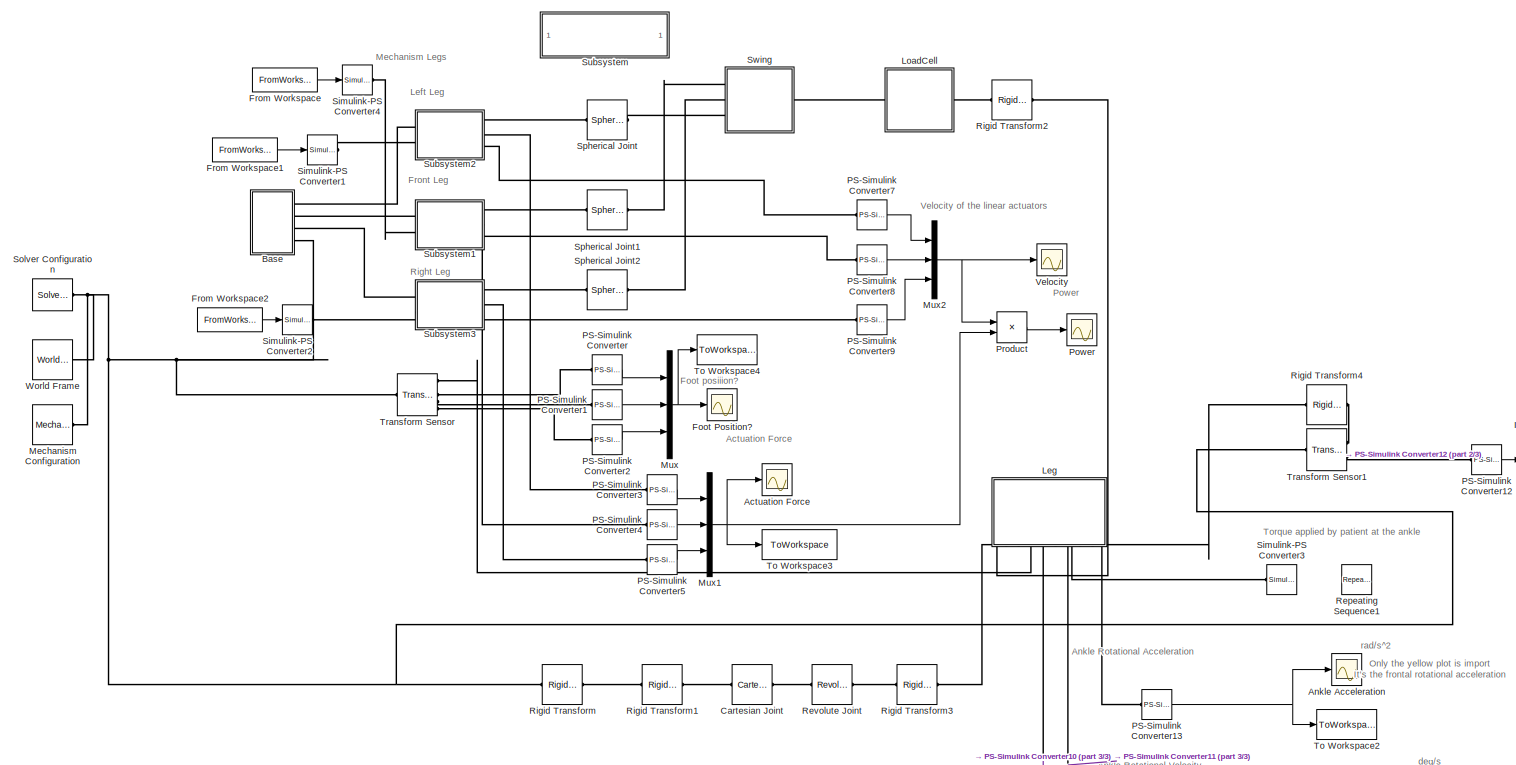
[diagram: root canvas - part 1/3, most of the canvas]
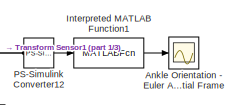
[diagram: root canvas - part 2/3, middle right region]
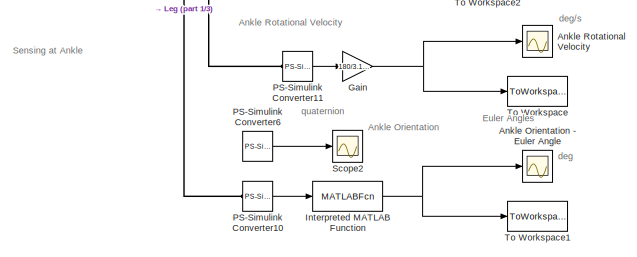
[diagram: root canvas - part 3/3, bottom right region]
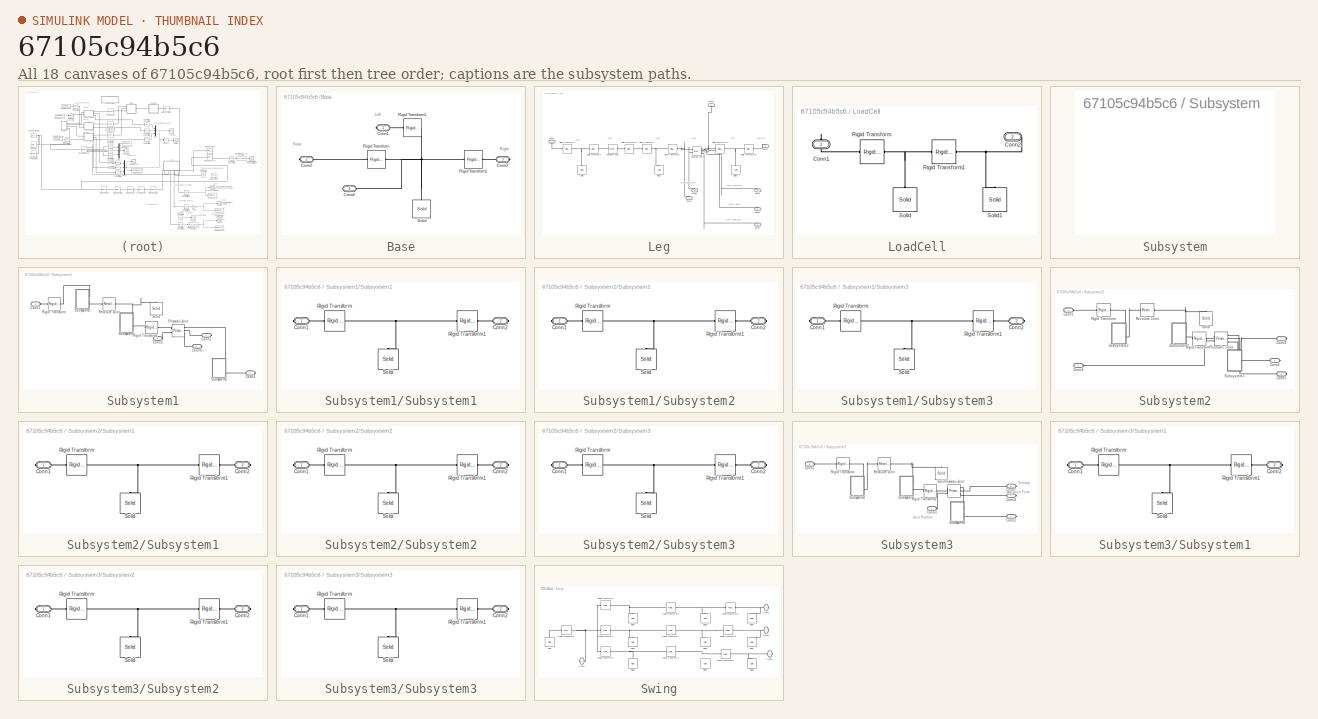
[diagram: thumbnail index - all 18 canvases of the model, root first then tree order]
MODEL slx_67105c94b5c6
KIND model
CONFIG AbsTol = auto
CONFIG EnableMultiTasking = on
CONFIG FixedStep = auto
CONFIG MaxStep = 0.001
CONFIG MinStep = auto
CONFIG RelTol = 1e-3
CONFIG SampleTimeConstraint = Unconstrained
CONFIG Solver = ode15s
CONFIG SolverName = ode15s
CONFIG StartTime = 0.0
CONFIG StopTime = tf
BLOCK [Scope] Actuation Force
  Floating = off
  NumInputPorts = 1
  Ports = [1]
  ScopeSpecificationString = Simulink.scopes.TimeScopeBlockCfg('CurrentConfiguration', extmgr.ConfigurationSet(extmgr.Configuration('Core','General UI',true),extmgr.Configuration('Core','Source UI',true),extmgr.Configuration('Sources','WiredSimulink',true,'DataLoggingSaveFormat','Array','DataLoggingDecimation','1','DataLoggingDecimateData',true,'DataLoggingVariableName','ScopeData1'),extmgr.Configuration('Visuals','Time Domai...<+1800ch>
BLOCK [Scope] Ankle Acceleration
  Floating = off
  NumInputPorts = 1
  Ports = [1]
  ScopeSpecificationString = Simulink.scopes.TimeScopeBlockCfg('CurrentConfiguration', extmgr.ConfigurationSet(extmgr.Configuration('Core','General UI',true),extmgr.Configuration('Core','Source UI',true),extmgr.Configuration('Sources','WiredSimulink',true,'DataLoggingVariableName','ScopeData2'),extmgr.Configuration('Visuals','Time Domain',true,'SerializedDisplays',{struct('MinYLimReal','-44.80784','MaxYLimReal','40.85378','YL...<+1481ch>
BLOCK [Scope] Ankle Orientation - Euler Angle
  Floating = off
  NumInputPorts = 1
  Ports = [1]
  ScopeSpecificationString = Simulink.scopes.TimeScopeBlockCfg('CurrentConfiguration', extmgr.ConfigurationSet(extmgr.Configuration('Core','General UI',true),extmgr.Configuration('Core','Source UI',true),extmgr.Configuration('Sources','WiredSimulink',true,'DataLoggingVariableName','ScopeData1'),extmgr.Configuration('Visuals','Time Domain',true,'SerializedDisplays',{struct('MinYLimReal','-47.02914','MaxYLimReal','27.67297','YL...<+1502ch>
BLOCK [Scope] Ankle Orientation - Euler Angle1 In Spatial Frame
  Floating = off
  NumInputPorts = 1
  Ports = [1]
  ScopeSpecificationString = Simulink.scopes.TimeScopeBlockCfg('CurrentConfiguration', extmgr.ConfigurationSet(extmgr.Configuration('Core','General UI',true),extmgr.Configuration('Core','Source UI',true),extmgr.Configuration('Sources','WiredSimulink',true,'DataLoggingVariableName','ScopeData1'),extmgr.Configuration('Visuals','Time Domain',true,'SerializedDisplays',{struct('MinYLimReal','-21.93748','MaxYLimReal','21.93746','YL...<+1577ch>
BLOCK [Scope] Ankle Rotational Velocity
  Floating = off
  NumInputPorts = 1
  Ports = [1]
  ScopeSpecificationString = Simulink.scopes.TimeScopeBlockCfg('CurrentConfiguration', extmgr.ConfigurationSet(extmgr.Configuration('Core','General UI',true),extmgr.Configuration('Core','Source UI',true),extmgr.Configuration('Sources','WiredSimulink',true,'DataLoggingSaveFormat','Array','DataLoggingDecimation','1','DataLoggingDecimateData',true,'DataLoggingVariableName','ScopeData1'),extmgr.Configuration('Visuals','Time Domai...<+1774ch>
BLOCK [SubSystem] Base
  Ports = [0, 0, 0, 0, 0, 0, 4]
  RequestExecContextInheritance = off
BLOCK [PMIOPort] Base/Conn1
  Side = Right
BLOCK [PMIOPort] Base/Conn2
  Port = 2
  Side = Right
BLOCK [PMIOPort] Base/Conn3
  Port = 3
  Side = Right
BLOCK [PMIOPort] Base/Conn4
  Port = 4
  Side = Right
BLOCK [Reference] Base/Rigid Transform  REF=sm_lib/Frames and
Transforms/Rigid
Transform
  Ports = [0, 0, 0, 0, 0, 1, 1]
  SourceBlock = sm_lib/Frames and\nTransforms/Rigid\nTransform
  SourceProductBaseCode = MS
  SourceProductName = Simscape Multibody
  SourceType = Rigid\nTransform
BLOCK [Reference] Base/Rigid Transform1  REF=sm_lib/Frames and
Transforms/Rigid
Transform
  Ports = [0, 0, 0, 0, 0, 1, 1]
  SourceBlock = sm_lib/Frames and\nTransforms/Rigid\nTransform
  SourceProductBaseCode = MS
  SourceProductName = Simscape Multibody
  SourceType = Rigid\nTransform
BLOCK [Reference] Base/Rigid Transform2  REF=sm_lib/Frames and
Transforms/Rigid
Transform
  Ports = [0, 0, 0, 0, 0, 1, 1]
  SourceBlock = sm_lib/Frames and\nTransforms/Rigid\nTransform
  SourceProductBaseCode = MS
  SourceProductName = Simscape Multibody
  SourceType = Rigid\nTransform
BLOCK [Reference] Base/Solid  REF=sm_lib/Body Elements/Solid
  Ports = [0, 0, 0, 0, 0, 0, 1]
  SourceBlock = sm_lib/Body Elements/Solid
  SourceProductBaseCode = MS
  SourceProductName = Simscape Multibody
  SourceType = Solid
BLOCK [Reference] Cartesian Joint  REF=sm_lib/Joints/Cartesian
Joint
  Ports = [0, 0, 0, 0, 0, 1, 1]
  SourceBlock = sm_lib/Joints/Cartesian\nJoint
  SourceProductBaseCode = MS
  SourceProductName = Simscape Multibody
  SourceType = Cartesian\nJoint
BLOCK [Scope] Foot Position?
  Floating = off
  NumInputPorts = 1
  Ports = [1]
  ScopeSpecificationString = Simulink.scopes.TimeScopeBlockCfg('CurrentConfiguration', extmgr.ConfigurationSet(extmgr.Configuration('Core','General UI',true),extmgr.Configuration('Core','Source UI',true),extmgr.Configuration('Sources','WiredSimulink',true,'DataLoggingSaveFormat','Array','DataLoggingDecimation','1','DataLoggingDecimateData',true),extmgr.Configuration('Visuals','Time Domain',true,'SerializedDisplays',{struct('M...<+1741ch>
BLOCK [FromWorkspace] From Workspace
  SampleTime = 0
  VariableName = Pfront
  ZeroCross = on
BLOCK [FromWorkspace] From Workspace1
  SampleTime = 0
  VariableName = Pleft
  ZeroCross = on
BLOCK [FromWorkspace] From Workspace2
  SampleTime = 0
  VariableName = Pright
  ZeroCross = on
BLOCK [Gain] Gain
  Gain = 180/3.1415
  OutDataTypeStr = Inherit: Inherit via internal rule
  ParamDataTypeStr = Inherit: Inherit via internal rule
  SaturateOnIntegerOverflow = off
BLOCK [MATLABFcn] Interpreted MATLAB Function
  MATLABFcn = quat2angle(u)
  Output1D = off
  Ports = [1, 1]
BLOCK [MATLABFcn] Interpreted MATLAB Function1
  MATLABFcn = quat2angle(u)
  Output1D = off
  Ports = [1, 1]
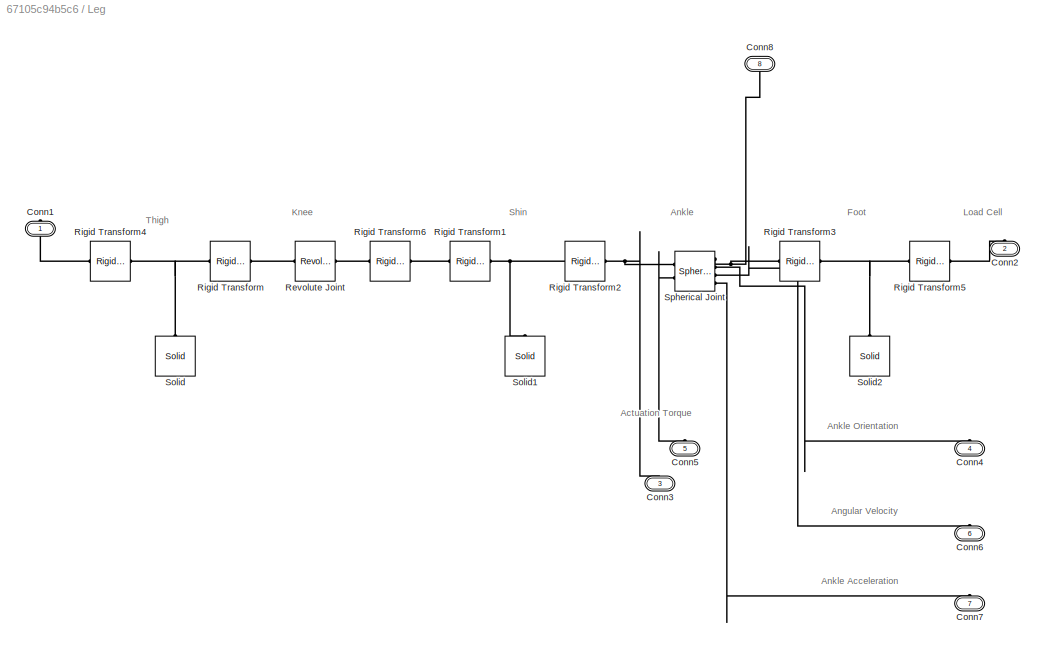
BLOCK [SubSystem] Leg
  Ports = [0, 0, 0, 0, 0, 0, 8]
  RequestExecContextInheritance = off
BLOCK [PMIOPort] Leg/Conn1
  Side = Right
BLOCK [PMIOPort] Leg/Conn2
  Port = 2
  Side = Right
BLOCK [PMIOPort] Leg/Conn3
  Port = 3
  Side = Right
BLOCK [PMIOPort] Leg/Conn4
  Port = 4
  Side = Right
BLOCK [PMIOPort] Leg/Conn5
  Port = 5
  Side = Right
BLOCK [PMIOPort] Leg/Conn6
  Port = 6
  Side = Right
BLOCK [PMIOPort] Leg/Conn7
  Port = 7
  Side = Right
BLOCK [PMIOPort] Leg/Conn8
  Port = 8
  Side = Right
BLOCK [Reference] Leg/Revolute Joint  REF=sm_lib/Joints/Revolute Joint
  Ports = [0, 0, 0, 0, 0, 1, 1]
  SourceBlock = sm_lib/Joints/Revolute Joint
  SourceProductBaseCode = MS
  SourceProductName = Simscape Multibody
  SourceType = Revolute Joint
BLOCK [Reference] Leg/Rigid Transform  REF=sm_lib/Frames and
Transforms/Rigid
Transform
  Ports = [0, 0, 0, 0, 0, 1, 1]
  SourceBlock = sm_lib/Frames and\nTransforms/Rigid\nTransform
  SourceProductBaseCode = MS
  SourceProductName = Simscape Multibody
  SourceType = Rigid\nTransform
BLOCK [Reference] Leg/Rigid Transform1  REF=sm_lib/Frames and
Transforms/Rigid
Transform
  Ports = [0, 0, 0, 0, 0, 1, 1]
  SourceBlock = sm_lib/Frames and\nTransforms/Rigid\nTransform
  SourceProductBaseCode = MS
  SourceProductName = Simscape Multibody
  SourceType = Rigid\nTransform
BLOCK [Reference] Leg/Rigid Transform2  REF=sm_lib/Frames and
Transforms/Rigid
Transform
  Ports = [0, 0, 0, 0, 0, 1, 1]
  SourceBlock = sm_lib/Frames and\nTransforms/Rigid\nTransform
  SourceProductBaseCode = MS
  SourceProductName = Simscape Multibody
  SourceType = Rigid\nTransform
BLOCK [Reference] Leg/Rigid Transform3  REF=sm_lib/Frames and
Transforms/Rigid
Transform
  Ports = [0, 0, 0, 0, 0, 1, 1]
  SourceBlock = sm_lib/Frames and\nTransforms/Rigid\nTransform
  SourceProductBaseCode = MS
  SourceProductName = Simscape Multibody
  SourceType = Rigid\nTransform
BLOCK [Reference] Leg/Rigid Transform4  REF=sm_lib/Frames and
Transforms/Rigid
Transform
  Ports = [0, 0, 0, 0, 0, 1, 1]
  SourceBlock = sm_lib/Frames and\nTransforms/Rigid\nTransform
  SourceProductBaseCode = MS
  SourceProductName = Simscape Multibody
  SourceType = Rigid\nTransform
BLOCK [Reference] Leg/Rigid Transform5  REF=sm_lib/Frames and
Transforms/Rigid
Transform
  Ports = [0, 0, 0, 0, 0, 1, 1]
  SourceBlock = sm_lib/Frames and\nTransforms/Rigid\nTransform
  SourceProductBaseCode = MS
  SourceProductName = Simscape Multibody
  SourceType = Rigid\nTransform
BLOCK [Reference] Leg/Rigid Transform6  REF=sm_lib/Frames and
Transforms/Rigid
Transform
  Ports = [0, 0, 0, 0, 0, 1, 1]
  SourceBlock = sm_lib/Frames and\nTransforms/Rigid\nTransform
  SourceProductBaseCode = MS
  SourceProductName = Simscape Multibody
  SourceType = Rigid\nTransform
BLOCK [Reference] Leg/Solid  REF=sm_lib/Body Elements/Solid
  Ports = [0, 0, 0, 0, 0, 0, 1]
  SourceBlock = sm_lib/Body Elements/Solid
  SourceProductBaseCode = MS
  SourceProductName = Simscape Multibody
  SourceType = Solid
BLOCK [Reference] Leg/Solid1  REF=sm_lib/Body Elements/Solid
  Ports = [0, 0, 0, 0, 0, 0, 1]
  SourceBlock = sm_lib/Body Elements/Solid
  SourceProductBaseCode = MS
  SourceProductName = Simscape Multibody
  SourceType = Solid
BLOCK [Reference] Leg/Solid2  REF=sm_lib/Body Elements/Solid
  Ports = [0, 0, 0, 0, 0, 0, 1]
  SourceBlock = sm_lib/Body Elements/Solid
  SourceProductBaseCode = MS
  SourceProductName = Simscape Multibody
  SourceType = Solid
BLOCK [Reference] Leg/Spherical Joint  REF=sm_lib/Joints/Spherical
Joint
  Ports = [0, 0, 0, 0, 0, 2, 4]
  SourceBlock = sm_lib/Joints/Spherical\nJoint
  SourceProductBaseCode = MS
  SourceProductName = Simscape Multibody
  SourceType = Spherical\nJoint
BLOCK [SubSystem] LoadCell
  Ports = [0, 0, 0, 0, 0, 1, 1]
  RequestExecContextInheritance = off
BLOCK [PMIOPort] LoadCell/Conn1
  Side = Right
BLOCK [PMIOPort] LoadCell/Conn2
  Port = 2
  Side = Left
BLOCK [Reference] LoadCell/Rigid Transform  REF=sm_lib/Frames and
Transforms/Rigid
Transform
  Ports = [0, 0, 0, 0, 0, 1, 1]
  SourceBlock = sm_lib/Frames and\nTransforms/Rigid\nTransform
  SourceProductBaseCode = MS
  SourceProductName = Simscape Multibody
  SourceType = Rigid\nTransform
BLOCK [Reference] LoadCell/Rigid Transform1  REF=sm_lib/Frames and
Transforms/Rigid
Transform
  Ports = [0, 0, 0, 0, 0, 1, 1]
  SourceBlock = sm_lib/Frames and\nTransforms/Rigid\nTransform
  SourceProductBaseCode = MS
  SourceProductName = Simscape Multibody
  SourceType = Rigid\nTransform
BLOCK [Reference] LoadCell/Solid  REF=sm_lib/Body Elements/Solid
  Ports = [0, 0, 0, 0, 0, 0, 1]
  SourceBlock = sm_lib/Body Elements/Solid
  SourceProductBaseCode = MS
  SourceProductName = Simscape Multibody
  SourceType = Solid
BLOCK [Reference] LoadCell/Solid1  REF=sm_lib/Body Elements/Solid
  Ports = [0, 0, 0, 0, 0, 0, 1]
  SourceBlock = sm_lib/Body Elements/Solid
  SourceProductBaseCode = MS
  SourceProductName = Simscape Multibody
  SourceType = Solid
BLOCK [Reference] Mechanism Configuration  REF=sm_lib/Utilities/Mechanism
Configuration
  Ports = [0, 0, 0, 0, 0, 0, 1]
  SourceBlock = sm_lib/Utilities/Mechanism\nConfiguration
  SourceProductBaseCode = MS
  SourceProductName = Simscape Multibody
  SourceType = Mechanism\nConfiguration
BLOCK [Mux] Mux
  DisplayOption = bar
  Inputs = 3
  Ports = [3, 1]
BLOCK [Mux] Mux1
  DisplayOption = bar
  Inputs = 3
  Ports = [3, 1]
BLOCK [Mux] Mux2
  DisplayOption = bar
  Inputs = 3
  Ports = [3, 1]
BLOCK [Reference] PS-Simulink Converter  REF=nesl_utility/PS-Simulink
Converter
  Ports = [0, 1, 0, 0, 0, 1]
  SourceBlock = nesl_utility/PS-Simulink\nConverter
  SourceProductBaseCode = SS
  SourceProductName = Simscape
  SourceType = PS-Simulink\nConverter
BLOCK [Reference] PS-Simulink Converter1  REF=nesl_utility/PS-Simulink
Converter
  Ports = [0, 1, 0, 0, 0, 1]
  SourceBlock = nesl_utility/PS-Simulink\nConverter
  SourceProductBaseCode = SS
  SourceProductName = Simscape
  SourceType = PS-Simulink\nConverter
BLOCK [Reference] PS-Simulink Converter10  REF=nesl_utility/PS-Simulink
Converter
  Ports = [0, 1, 0, 0, 0, 1]
  SourceBlock = nesl_utility/PS-Simulink\nConverter
  SourceProductBaseCode = SS
  SourceProductName = Simscape
  SourceType = PS-Simulink\nConverter
BLOCK [Reference] PS-Simulink Converter11  REF=nesl_utility/PS-Simulink
Converter
  Ports = [0, 1, 0, 0, 0, 1]
  SourceBlock = nesl_utility/PS-Simulink\nConverter
  SourceProductBaseCode = SS
  SourceProductName = Simscape
  SourceType = PS-Simulink\nConverter
BLOCK [Reference] PS-Simulink Converter12  REF=nesl_utility/PS-Simulink
Converter
  Ports = [0, 1, 0, 0, 0, 1]
  SourceBlock = nesl_utility/PS-Simulink\nConverter
  SourceProductBaseCode = SS
  SourceProductName = Simscape
  SourceType = PS-Simulink\nConverter
BLOCK [Reference] PS-Simulink Converter13  REF=nesl_utility/PS-Simulink
Converter
  Ports = [0, 1, 0, 0, 0, 1]
  SourceBlock = nesl_utility/PS-Simulink\nConverter
  SourceProductBaseCode = SS
  SourceProductName = Simscape
  SourceType = PS-Simulink\nConverter
BLOCK [Reference] PS-Simulink Converter2  REF=nesl_utility/PS-Simulink
Converter
  Ports = [0, 1, 0, 0, 0, 1]
  SourceBlock = nesl_utility/PS-Simulink\nConverter
  SourceProductBaseCode = SS
  SourceProductName = Simscape
  SourceType = PS-Simulink\nConverter
BLOCK [Reference] PS-Simulink Converter3  REF=nesl_utility/PS-Simulink
Converter
  Ports = [0, 1, 0, 0, 0, 1]
  SourceBlock = nesl_utility/PS-Simulink\nConverter
  SourceProductBaseCode = SS
  SourceProductName = Simscape
  SourceType = PS-Simulink\nConverter
BLOCK [Reference] PS-Simulink Converter4  REF=nesl_utility/PS-Simulink
Converter
  Ports = [0, 1, 0, 0, 0, 1]
  SourceBlock = nesl_utility/PS-Simulink\nConverter
  SourceProductBaseCode = SS
  SourceProductName = Simscape
  SourceType = PS-Simulink\nConverter
BLOCK [Reference] PS-Simulink Converter5  REF=nesl_utility/PS-Simulink
Converter
  Ports = [0, 1, 0, 0, 0, 1]
  SourceBlock = nesl_utility/PS-Simulink\nConverter
  SourceProductBaseCode = SS
  SourceProductName = Simscape
  SourceType = PS-Simulink\nConverter
BLOCK [Reference] PS-Simulink Converter6  REF=nesl_utility/PS-Simulink
Converter
  Commented = on
  Ports = [0, 1, 0, 0, 0, 1]
  SourceBlock = nesl_utility/PS-Simulink\nConverter
  SourceProductBaseCode = SS
  SourceProductName = Simscape
  SourceType = PS-Simulink\nConverter
BLOCK [Reference] PS-Simulink Converter7  REF=nesl_utility/PS-Simulink
Converter
  Ports = [0, 1, 0, 0, 0, 1]
  SourceBlock = nesl_utility/PS-Simulink\nConverter
  SourceProductBaseCode = SS
  SourceProductName = Simscape
  SourceType = PS-Simulink\nConverter
BLOCK [Reference] PS-Simulink Converter8  REF=nesl_utility/PS-Simulink
Converter
  Ports = [0, 1, 0, 0, 0, 1]
  SourceBlock = nesl_utility/PS-Simulink\nConverter
  SourceProductBaseCode = SS
  SourceProductName = Simscape
  SourceType = PS-Simulink\nConverter
BLOCK [Reference] PS-Simulink Converter9  REF=nesl_utility/PS-Simulink
Converter
  Ports = [0, 1, 0, 0, 0, 1]
  SourceBlock = nesl_utility/PS-Simulink\nConverter
  SourceProductBaseCode = SS
  SourceProductName = Simscape
  SourceType = PS-Simulink\nConverter
BLOCK [Scope] Power
  Floating = off
  NumInputPorts = 1
  Ports = [1]
  ScopeSpecificationString = Simulink.scopes.TimeScopeBlockCfg('CurrentConfiguration', extmgr.ConfigurationSet(extmgr.Configuration('Core','General UI',true),extmgr.Configuration('Core','Source UI',true),extmgr.Configuration('Sources','WiredSimulink',true,'DataLoggingSaveFormat','Array','DataLoggingDecimation','1','DataLoggingDecimateData',true,'DataLoggingVariableName','ScopeData3'),extmgr.Configuration('Visuals','Time Domai...<+1694ch>
BLOCK [Product] Product
  InputSameDT = off
  OutDataTypeStr = Inherit: Inherit via internal rule
  Ports = [2, 1]
  RndMeth = Floor
  SaturateOnIntegerOverflow = off
BLOCK [Reference] Repeating Sequence1  REF=simulink/Sources/Repeating
Sequence
  Commented = on
  Ports = [0, 1]
  SourceBlock = simulink/Sources/Repeating\nSequence
  SourceProductBaseCode = SL
  SourceProductName = Simulink
  SourceType = Repeating table
BLOCK [Reference] Revolute Joint  REF=sm_lib/Joints/Revolute Joint
  Ports = [0, 0, 0, 0, 0, 1, 1]
  SourceBlock = sm_lib/Joints/Revolute Joint
  SourceProductBaseCode = MS
  SourceProductName = Simscape Multibody
  SourceType = Revolute Joint
BLOCK [Reference] Rigid Transform  REF=sm_lib/Frames and
Transforms/Rigid
Transform
  Ports = [0, 0, 0, 0, 0, 1, 1]
  SourceBlock = sm_lib/Frames and\nTransforms/Rigid\nTransform
  SourceProductBaseCode = MS
  SourceProductName = Simscape Multibody
  SourceType = Rigid\nTransform
BLOCK [Reference] Rigid Transform1  REF=sm_lib/Frames and
Transforms/Rigid
Transform
  Ports = [0, 0, 0, 0, 0, 1, 1]
  SourceBlock = sm_lib/Frames and\nTransforms/Rigid\nTransform
  SourceProductBaseCode = MS
  SourceProductName = Simscape Multibody
  SourceType = Rigid\nTransform
BLOCK [Reference] Rigid Transform2  REF=sm_lib/Frames and
Transforms/Rigid
Transform
  Ports = [0, 0, 0, 0, 0, 1, 1]
  SourceBlock = sm_lib/Frames and\nTransforms/Rigid\nTransform
  SourceProductBaseCode = MS
  SourceProductName = Simscape Multibody
  SourceType = Rigid\nTransform
BLOCK [Reference] Rigid Transform3  REF=sm_lib/Frames and
Transforms/Rigid
Transform
  Ports = [0, 0, 0, 0, 0, 1, 1]
  SourceBlock = sm_lib/Frames and\nTransforms/Rigid\nTransform
  SourceProductBaseCode = MS
  SourceProductName = Simscape Multibody
  SourceType = Rigid\nTransform
BLOCK [Reference] Rigid Transform4  REF=sm_lib/Frames and
Transforms/Rigid
Transform
  Ports = [0, 0, 0, 0, 0, 1, 1]
  SourceBlock = sm_lib/Frames and\nTransforms/Rigid\nTransform
  SourceProductBaseCode = MS
  SourceProductName = Simscape Multibody
  SourceType = Rigid\nTransform
BLOCK [Scope] Scope2
  Commented = on
  Floating = off
  NumInputPorts = 1
  Ports = [1]
  ScopeSpecificationString = Simulink.scopes.TimeScopeBlockCfg('CurrentConfiguration', extmgr.ConfigurationSet(extmgr.Configuration('Core','General UI',true),extmgr.Configuration('Core','Source UI',true),extmgr.Configuration('Sources','WiredSimulink',true,'DataLoggingSaveFormat','Array','DataLoggingDecimation','1','DataLoggingDecimateData',true,'DataLoggingVariableName','ScopeData1'),extmgr.Configuration('Visuals','Time Domai...<+1758ch>
BLOCK [Reference] Simulink-PS Converter1  REF=nesl_utility/Simulink-PS
Converter
  Ports = [1, 0, 0, 0, 0, 0, 1]
  SourceBlock = nesl_utility/Simulink-PS\nConverter
  SourceProductBaseCode = SS
  SourceProductName = Simscape
  SourceType = Simulink-PS\nConverter
BLOCK [Reference] Simulink-PS Converter2  REF=nesl_utility/Simulink-PS
Converter
  Ports = [1, 0, 0, 0, 0, 0, 1]
  SourceBlock = nesl_utility/Simulink-PS\nConverter
  SourceProductBaseCode = SS
  SourceProductName = Simscape
  SourceType = Simulink-PS\nConverter
BLOCK [Reference] Simulink-PS Converter3  REF=nesl_utility/Simulink-PS
Converter
  Commented = on
  Ports = [1, 0, 0, 0, 0, 0, 1]
  SourceBlock = nesl_utility/Simulink-PS\nConverter
  SourceProductBaseCode = SS
  SourceProductName = Simscape
  SourceType = Simulink-PS\nConverter
BLOCK [Reference] Simulink-PS Converter4  REF=nesl_utility/Simulink-PS
Converter
  Ports = [1, 0, 0, 0, 0, 0, 1]
  SourceBlock = nesl_utility/Simulink-PS\nConverter
  SourceProductBaseCode = SS
  SourceProductName = Simscape
  SourceType = Simulink-PS\nConverter
BLOCK [Reference] Solver Configuration  REF=nesl_utility/Solver
Configuration
  Ports = [0, 0, 0, 0, 0, 0, 1]
  SourceBlock = nesl_utility/Solver\nConfiguration
  SourceProductBaseCode = SS
  SourceProductName = Simscape
  SourceType = Solver\nConfiguration
BLOCK [Reference] Spherical Joint  REF=sm_lib/Joints/Spherical
Joint
  Ports = [0, 0, 0, 0, 0, 1, 1]
  SourceBlock = sm_lib/Joints/Spherical\nJoint
  SourceProductBaseCode = MS
  SourceProductName = Simscape Multibody
  SourceType = Spherical\nJoint
BLOCK [Reference] Spherical Joint1  REF=sm_lib/Joints/Spherical
Joint
  Ports = [0, 0, 0, 0, 0, 1, 1]
  SourceBlock = sm_lib/Joints/Spherical\nJoint
  SourceProductBaseCode = MS
  SourceProductName = Simscape Multibody
  SourceType = Spherical\nJoint
BLOCK [Reference] Spherical Joint2  REF=sm_lib/Joints/Spherical
Joint
  Ports = [0, 0, 0, 0, 0, 1, 1]
  SourceBlock = sm_lib/Joints/Spherical\nJoint
  SourceProductBaseCode = MS
  SourceProductName = Simscape Multibody
  SourceType = Spherical\nJoint
BLOCK [SubSystem] Subsystem
  OpenFcn = open_system('sm_lib')
  Ports = []
  RequestExecContextInheritance = off
  ShowPortLabels = none
BLOCK [SubSystem] Subsystem1
  Ports = [0, 0, 0, 0, 0, 2, 3]
  RequestExecContextInheritance = off
BLOCK [PMIOPort] Subsystem1/Conn1
  Side = Left
BLOCK [PMIOPort] Subsystem1/Conn2
  Port = 2
  Side = Right
BLOCK [PMIOPort] Subsystem1/Conn3
  Port = 3
  Side = Left
BLOCK [PMIOPort] Subsystem1/Conn4
  Port = 4
  Side = Right
BLOCK [PMIOPort] Subsystem1/Conn5
  Port = 5
  Side = Right
BLOCK [Reference] Subsystem1/Prismatic Joint  REF=sm_lib/Joints/Prismatic
Joint
  Ports = [0, 0, 0, 0, 0, 2, 3]
  SourceBlock = sm_lib/Joints/Prismatic\nJoint
  SourceProductBaseCode = MS
  SourceProductName = Simscape Multibody
  SourceType = Prismatic\nJoint
BLOCK [Reference] Subsystem1/Revolute Joint  REF=sm_lib/Joints/Revolute Joint
  Ports = [0, 0, 0, 0, 0, 1, 1]
  SourceBlock = sm_lib/Joints/Revolute Joint
  SourceProductBaseCode = MS
  SourceProductName = Simscape Multibody
  SourceType = Revolute Joint
BLOCK [Reference] Subsystem1/Rigid Transform  REF=sm_lib/Frames and
Transforms/Rigid
Transform
  Ports = [0, 0, 0, 0, 0, 1, 1]
  SourceBlock = sm_lib/Frames and\nTransforms/Rigid\nTransform
  SourceProductBaseCode = MS
  SourceProductName = Simscape Multibody
  SourceType = Rigid\nTransform
BLOCK [Reference] Subsystem1/Rigid Transform1  REF=sm_lib/Frames and
Transforms/Rigid
Transform
  Ports = [0, 0, 0, 0, 0, 1, 1]
  SourceBlock = sm_lib/Frames and\nTransforms/Rigid\nTransform
  SourceProductBaseCode = MS
  SourceProductName = Simscape Multibody
  SourceType = Rigid\nTransform
BLOCK [Reference] Subsystem1/Solid  REF=sm_lib/Body Elements/Solid
  Ports = [0, 0, 0, 0, 0, 0, 1]
  SourceBlock = sm_lib/Body Elements/Solid
  SourceProductBaseCode = MS
  SourceProductName = Simscape Multibody
  SourceType = Solid
BLOCK [SubSystem] Subsystem1/Subsystem1
  Ports = [0, 0, 0, 0, 0, 0, 2]
  RequestExecContextInheritance = off
BLOCK [PMIOPort] Subsystem1/Subsystem1/Conn1
  Side = Right
BLOCK [PMIOPort] Subsystem1/Subsystem1/Conn2
  Port = 2
  Side = Right
BLOCK [Reference] Subsystem1/Subsystem1/Rigid Transform  REF=sm_lib/Frames and
Transforms/Rigid
Transform
  Ports = [0, 0, 0, 0, 0, 1, 1]
  SourceBlock = sm_lib/Frames and\nTransforms/Rigid\nTransform
  SourceProductBaseCode = MS
  SourceProductName = Simscape Multibody
  SourceType = Rigid\nTransform
BLOCK [Reference] Subsystem1/Subsystem1/Rigid Transform1  REF=sm_lib/Frames and
Transforms/Rigid
Transform
  Ports = [0, 0, 0, 0, 0, 1, 1]
  SourceBlock = sm_lib/Frames and\nTransforms/Rigid\nTransform
  SourceProductBaseCode = MS
  SourceProductName = Simscape Multibody
  SourceType = Rigid\nTransform
BLOCK [Reference] Subsystem1/Subsystem1/Solid  REF=sm_lib/Body Elements/Solid
  Ports = [0, 0, 0, 0, 0, 0, 1]
  SourceBlock = sm_lib/Body Elements/Solid
  SourceProductBaseCode = MS
  SourceProductName = Simscape Multibody
  SourceType = Solid
BLOCK [SubSystem] Subsystem1/Subsystem2
  Ports = [0, 0, 0, 0, 0, 0, 2]
  RequestExecContextInheritance = off
BLOCK [PMIOPort] Subsystem1/Subsystem2/Conn1
  Side = Right
BLOCK [PMIOPort] Subsystem1/Subsystem2/Conn2
  Port = 2
  Side = Right
BLOCK [Reference] Subsystem1/Subsystem2/Rigid Transform  REF=sm_lib/Frames and
Transforms/Rigid
Transform
  Ports = [0, 0, 0, 0, 0, 1, 1]
  SourceBlock = sm_lib/Frames and\nTransforms/Rigid\nTransform
  SourceProductBaseCode = MS
  SourceProductName = Simscape Multibody
  SourceType = Rigid\nTransform
BLOCK [Reference] Subsystem1/Subsystem2/Rigid Transform1  REF=sm_lib/Frames and
Transforms/Rigid
Transform
  Ports = [0, 0, 0, 0, 0, 1, 1]
  SourceBlock = sm_lib/Frames and\nTransforms/Rigid\nTransform
  SourceProductBaseCode = MS
  SourceProductName = Simscape Multibody
  SourceType = Rigid\nTransform
BLOCK [Reference] Subsystem1/Subsystem2/Solid  REF=sm_lib/Body Elements/Solid
  Ports = [0, 0, 0, 0, 0, 0, 1]
  SourceBlock = sm_lib/Body Elements/Solid
  SourceProductBaseCode = MS
  SourceProductName = Simscape Multibody
  SourceType = Solid
BLOCK [SubSystem] Subsystem1/Subsystem3
  Ports = [0, 0, 0, 0, 0, 0, 2]
  RequestExecContextInheritance = off
BLOCK [PMIOPort] Subsystem1/Subsystem3/Conn1
  Side = Right
BLOCK [PMIOPort] Subsystem1/Subsystem3/Conn2
  Port = 2
  Side = Right
BLOCK [Reference] Subsystem1/Subsystem3/Rigid Transform  REF=sm_lib/Frames and
Transforms/Rigid
Transform
  Ports = [0, 0, 0, 0, 0, 1, 1]
  SourceBlock = sm_lib/Frames and\nTransforms/Rigid\nTransform
  SourceProductBaseCode = MS
  SourceProductName = Simscape Multibody
  SourceType = Rigid\nTransform
BLOCK [Reference] Subsystem1/Subsystem3/Rigid Transform1  REF=sm_lib/Frames and
Transforms/Rigid
Transform
  Ports = [0, 0, 0, 0, 0, 1, 1]
  SourceBlock = sm_lib/Frames and\nTransforms/Rigid\nTransform
  SourceProductBaseCode = MS
  SourceProductName = Simscape Multibody
  SourceType = Rigid\nTransform
BLOCK [Reference] Subsystem1/Subsystem3/Solid  REF=sm_lib/Body Elements/Solid
  Ports = [0, 0, 0, 0, 0, 0, 1]
  SourceBlock = sm_lib/Body Elements/Solid
  SourceProductBaseCode = MS
  SourceProductName = Simscape Multibody
  SourceType = Solid
BLOCK [SubSystem] Subsystem2
  Ports = [0, 0, 0, 0, 0, 2, 3]
  RequestExecContextInheritance = off
BLOCK [PMIOPort] Subsystem2/Conn1
  Side = Left
BLOCK [PMIOPort] Subsystem2/Conn2
  Port = 2
  Side = Right
BLOCK [PMIOPort] Subsystem2/Conn3
  Port = 3
  Side = Left
BLOCK [PMIOPort] Subsystem2/Conn4
  Port = 4
  Side = Right
BLOCK [PMIOPort] Subsystem2/Conn5
  Port = 5
  Side = Right
BLOCK [Reference] Subsystem2/Prismatic Joint  REF=sm_lib/Joints/Prismatic
Joint
  Ports = [0, 0, 0, 0, 0, 2, 3]
  SourceBlock = sm_lib/Joints/Prismatic\nJoint
  SourceProductBaseCode = MS
  SourceProductName = Simscape Multibody
  SourceType = Prismatic\nJoint
BLOCK [Reference] Subsystem2/Revolute Joint  REF=sm_lib/Joints/Revolute Joint
  Ports = [0, 0, 0, 0, 0, 1, 1]
  SourceBlock = sm_lib/Joints/Revolute Joint
  SourceProductBaseCode = MS
  SourceProductName = Simscape Multibody
  SourceType = Revolute Joint
BLOCK [Reference] Subsystem2/Rigid Transform  REF=sm_lib/Frames and
Transforms/Rigid
Transform
  Ports = [0, 0, 0, 0, 0, 1, 1]
  SourceBlock = sm_lib/Frames and\nTransforms/Rigid\nTransform
  SourceProductBaseCode = MS
  SourceProductName = Simscape Multibody
  SourceType = Rigid\nTransform
BLOCK [Reference] Subsystem2/Rigid Transform1  REF=sm_lib/Frames and
Transforms/Rigid
Transform
  Ports = [0, 0, 0, 0, 0, 1, 1]
  SourceBlock = sm_lib/Frames and\nTransforms/Rigid\nTransform
  SourceProductBaseCode = MS
  SourceProductName = Simscape Multibody
  SourceType = Rigid\nTransform
BLOCK [Reference] Subsystem2/Solid  REF=sm_lib/Body Elements/Solid
  Ports = [0, 0, 0, 0, 0, 0, 1]
  SourceBlock = sm_lib/Body Elements/Solid
  SourceProductBaseCode = MS
  SourceProductName = Simscape Multibody
  SourceType = Solid
BLOCK [SubSystem] Subsystem2/Subsystem1
  Ports = [0, 0, 0, 0, 0, 0, 2]
  RequestExecContextInheritance = off
BLOCK [PMIOPort] Subsystem2/Subsystem1/Conn1
  Side = Right
BLOCK [PMIOPort] Subsystem2/Subsystem1/Conn2
  Port = 2
  Side = Right
BLOCK [Reference] Subsystem2/Subsystem1/Rigid Transform  REF=sm_lib/Frames and
Transforms/Rigid
Transform
  Ports = [0, 0, 0, 0, 0, 1, 1]
  SourceBlock = sm_lib/Frames and\nTransforms/Rigid\nTransform
  SourceProductBaseCode = MS
  SourceProductName = Simscape Multibody
  SourceType = Rigid\nTransform
BLOCK [Reference] Subsystem2/Subsystem1/Rigid Transform1  REF=sm_lib/Frames and
Transforms/Rigid
Transform
  Ports = [0, 0, 0, 0, 0, 1, 1]
  SourceBlock = sm_lib/Frames and\nTransforms/Rigid\nTransform
  SourceProductBaseCode = MS
  SourceProductName = Simscape Multibody
  SourceType = Rigid\nTransform
BLOCK [Reference] Subsystem2/Subsystem1/Solid  REF=sm_lib/Body Elements/Solid
  Ports = [0, 0, 0, 0, 0, 0, 1]
  SourceBlock = sm_lib/Body Elements/Solid
  SourceProductBaseCode = MS
  SourceProductName = Simscape Multibody
  SourceType = Solid
BLOCK [SubSystem] Subsystem2/Subsystem2
  Ports = [0, 0, 0, 0, 0, 0, 2]
  RequestExecContextInheritance = off
BLOCK [PMIOPort] Subsystem2/Subsystem2/Conn1
  Side = Right
BLOCK [PMIOPort] Subsystem2/Subsystem2/Conn2
  Port = 2
  Side = Right
BLOCK [Reference] Subsystem2/Subsystem2/Rigid Transform  REF=sm_lib/Frames and
Transforms/Rigid
Transform
  Ports = [0, 0, 0, 0, 0, 1, 1]
  SourceBlock = sm_lib/Frames and\nTransforms/Rigid\nTransform
  SourceProductBaseCode = MS
  SourceProductName = Simscape Multibody
  SourceType = Rigid\nTransform
BLOCK [Reference] Subsystem2/Subsystem2/Rigid Transform1  REF=sm_lib/Frames and
Transforms/Rigid
Transform
  Ports = [0, 0, 0, 0, 0, 1, 1]
  SourceBlock = sm_lib/Frames and\nTransforms/Rigid\nTransform
  SourceProductBaseCode = MS
  SourceProductName = Simscape Multibody
  SourceType = Rigid\nTransform
BLOCK [Reference] Subsystem2/Subsystem2/Solid  REF=sm_lib/Body Elements/Solid
  Ports = [0, 0, 0, 0, 0, 0, 1]
  SourceBlock = sm_lib/Body Elements/Solid
  SourceProductBaseCode = MS
  SourceProductName = Simscape Multibody
  SourceType = Solid
BLOCK [SubSystem] Subsystem2/Subsystem3
  Ports = [0, 0, 0, 0, 0, 0, 2]
  RequestExecContextInheritance = off
BLOCK [PMIOPort] Subsystem2/Subsystem3/Conn1
  Side = Right
BLOCK [PMIOPort] Subsystem2/Subsystem3/Conn2
  Port = 2
  Side = Right
BLOCK [Reference] Subsystem2/Subsystem3/Rigid Transform  REF=sm_lib/Frames and
Transforms/Rigid
Transform
  Ports = [0, 0, 0, 0, 0, 1, 1]
  SourceBlock = sm_lib/Frames and\nTransforms/Rigid\nTransform
  SourceProductBaseCode = MS
  SourceProductName = Simscape Multibody
  SourceType = Rigid\nTransform
BLOCK [Reference] Subsystem2/Subsystem3/Rigid Transform1  REF=sm_lib/Frames and
Transforms/Rigid
Transform
  Ports = [0, 0, 0, 0, 0, 1, 1]
  SourceBlock = sm_lib/Frames and\nTransforms/Rigid\nTransform
  SourceProductBaseCode = MS
  SourceProductName = Simscape Multibody
  SourceType = Rigid\nTransform
BLOCK [Reference] Subsystem2/Subsystem3/Solid  REF=sm_lib/Body Elements/Solid
  Ports = [0, 0, 0, 0, 0, 0, 1]
  SourceBlock = sm_lib/Body Elements/Solid
  SourceProductBaseCode = MS
  SourceProductName = Simscape Multibody
  SourceType = Solid
BLOCK [SubSystem] Subsystem3
  Ports = [0, 0, 0, 0, 0, 2, 3]
  RequestExecContextInheritance = off
BLOCK [PMIOPort] Subsystem3/Conn1
  Side = Left
BLOCK [PMIOPort] Subsystem3/Conn2
  Port = 2
  Side = Right
BLOCK [PMIOPort] Subsystem3/Conn3
  Port = 3
  Side = Left
BLOCK [PMIOPort] Subsystem3/Conn4
  Port = 4
  Side = Right
BLOCK [PMIOPort] Subsystem3/Conn5
  Port = 5
  Side = Right
BLOCK [Reference] Subsystem3/Prismatic Joint  REF=sm_lib/Joints/Prismatic
Joint
  Ports = [0, 0, 0, 0, 0, 2, 3]
  SourceBlock = sm_lib/Joints/Prismatic\nJoint
  SourceProductBaseCode = MS
  SourceProductName = Simscape Multibody
  SourceType = Prismatic\nJoint
BLOCK [Reference] Subsystem3/Revolute Joint  REF=sm_lib/Joints/Revolute Joint
  Ports = [0, 0, 0, 0, 0, 1, 1]
  SourceBlock = sm_lib/Joints/Revolute Joint
  SourceProductBaseCode = MS
  SourceProductName = Simscape Multibody
  SourceType = Revolute Joint
BLOCK [Reference] Subsystem3/Rigid Transform  REF=sm_lib/Frames and
Transforms/Rigid
Transform
  Ports = [0, 0, 0, 0, 0, 1, 1]
  SourceBlock = sm_lib/Frames and\nTransforms/Rigid\nTransform
  SourceProductBaseCode = MS
  SourceProductName = Simscape Multibody
  SourceType = Rigid\nTransform
BLOCK [Reference] Subsystem3/Rigid Transform1  REF=sm_lib/Frames and
Transforms/Rigid
Transform
  Ports = [0, 0, 0, 0, 0, 1, 1]
  SourceBlock = sm_lib/Frames and\nTransforms/Rigid\nTransform
  SourceProductBaseCode = MS
  SourceProductName = Simscape Multibody
  SourceType = Rigid\nTransform
BLOCK [Reference] Subsystem3/Solid  REF=sm_lib/Body Elements/Solid
  Ports = [0, 0, 0, 0, 0, 0, 1]
  SourceBlock = sm_lib/Body Elements/Solid
  SourceProductBaseCode = MS
  SourceProductName = Simscape Multibody
  SourceType = Solid
BLOCK [SubSystem] Subsystem3/Subsystem1
  Ports = [0, 0, 0, 0, 0, 0, 2]
  RequestExecContextInheritance = off
BLOCK [PMIOPort] Subsystem3/Subsystem1/Conn1
  Side = Right
BLOCK [PMIOPort] Subsystem3/Subsystem1/Conn2
  Port = 2
  Side = Right
BLOCK [Reference] Subsystem3/Subsystem1/Rigid Transform  REF=sm_lib/Frames and
Transforms/Rigid
Transform
  Ports = [0, 0, 0, 0, 0, 1, 1]
  SourceBlock = sm_lib/Frames and\nTransforms/Rigid\nTransform
  SourceProductBaseCode = MS
  SourceProductName = Simscape Multibody
  SourceType = Rigid\nTransform
BLOCK [Reference] Subsystem3/Subsystem1/Rigid Transform1  REF=sm_lib/Frames and
Transforms/Rigid
Transform
  Ports = [0, 0, 0, 0, 0, 1, 1]
  SourceBlock = sm_lib/Frames and\nTransforms/Rigid\nTransform
  SourceProductBaseCode = MS
  SourceProductName = Simscape Multibody
  SourceType = Rigid\nTransform
BLOCK [Reference] Subsystem3/Subsystem1/Solid  REF=sm_lib/Body Elements/Solid
  Ports = [0, 0, 0, 0, 0, 0, 1]
  SourceBlock = sm_lib/Body Elements/Solid
  SourceProductBaseCode = MS
  SourceProductName = Simscape Multibody
  SourceType = Solid
BLOCK [SubSystem] Subsystem3/Subsystem2
  Ports = [0, 0, 0, 0, 0, 0, 2]
  RequestExecContextInheritance = off
BLOCK [PMIOPort] Subsystem3/Subsystem2/Conn1
  Side = Right
BLOCK [PMIOPort] Subsystem3/Subsystem2/Conn2
  Port = 2
  Side = Right
BLOCK [Reference] Subsystem3/Subsystem2/Rigid Transform  REF=sm_lib/Frames and
Transforms/Rigid
Transform
  Ports = [0, 0, 0, 0, 0, 1, 1]
  SourceBlock = sm_lib/Frames and\nTransforms/Rigid\nTransform
  SourceProductBaseCode = MS
  SourceProductName = Simscape Multibody
  SourceType = Rigid\nTransform
BLOCK [Reference] Subsystem3/Subsystem2/Rigid Transform1  REF=sm_lib/Frames and
Transforms/Rigid
Transform
  Ports = [0, 0, 0, 0, 0, 1, 1]
  SourceBlock = sm_lib/Frames and\nTransforms/Rigid\nTransform
  SourceProductBaseCode = MS
  SourceProductName = Simscape Multibody
  SourceType = Rigid\nTransform
BLOCK [Reference] Subsystem3/Subsystem2/Solid  REF=sm_lib/Body Elements/Solid
  Ports = [0, 0, 0, 0, 0, 0, 1]
  SourceBlock = sm_lib/Body Elements/Solid
  SourceProductBaseCode = MS
  SourceProductName = Simscape Multibody
  SourceType = Solid
BLOCK [SubSystem] Subsystem3/Subsystem3
  Ports = [0, 0, 0, 0, 0, 0, 2]
  RequestExecContextInheritance = off
BLOCK [PMIOPort] Subsystem3/Subsystem3/Conn1
  Side = Right
BLOCK [PMIOPort] Subsystem3/Subsystem3/Conn2
  Port = 2
  Side = Right
BLOCK [Reference] Subsystem3/Subsystem3/Rigid Transform  REF=sm_lib/Frames and
Transforms/Rigid
Transform
  Ports = [0, 0, 0, 0, 0, 1, 1]
  SourceBlock = sm_lib/Frames and\nTransforms/Rigid\nTransform
  SourceProductBaseCode = MS
  SourceProductName = Simscape Multibody
  SourceType = Rigid\nTransform
BLOCK [Reference] Subsystem3/Subsystem3/Rigid Transform1  REF=sm_lib/Frames and
Transforms/Rigid
Transform
  Ports = [0, 0, 0, 0, 0, 1, 1]
  SourceBlock = sm_lib/Frames and\nTransforms/Rigid\nTransform
  SourceProductBaseCode = MS
  SourceProductName = Simscape Multibody
  SourceType = Rigid\nTransform
BLOCK [Reference] Subsystem3/Subsystem3/Solid  REF=sm_lib/Body Elements/Solid
  Ports = [0, 0, 0, 0, 0, 0, 1]
  SourceBlock = sm_lib/Body Elements/Solid
  SourceProductBaseCode = MS
  SourceProductName = Simscape Multibody
  SourceType = Solid
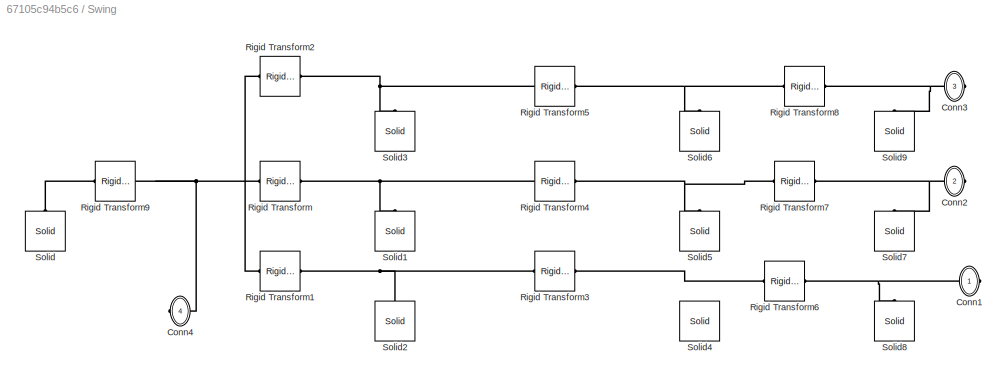
BLOCK [SubSystem] Swing
  Ports = [0, 0, 0, 0, 0, 1, 3]
  RequestExecContextInheritance = off
BLOCK [PMIOPort] Swing/Conn1
  Side = Right
BLOCK [PMIOPort] Swing/Conn2
  Port = 2
  Side = Right
BLOCK [PMIOPort] Swing/Conn3
  Port = 3
  Side = Right
BLOCK [PMIOPort] Swing/Conn4
  Port = 4
  Side = Left
BLOCK [Reference] Swing/Rigid Transform  REF=sm_lib/Frames and
Transforms/Rigid
Transform
  Ports = [0, 0, 0, 0, 0, 1, 1]
  SourceBlock = sm_lib/Frames and\nTransforms/Rigid\nTransform
  SourceProductBaseCode = MS
  SourceProductName = Simscape Multibody
  SourceType = Rigid\nTransform
BLOCK [Reference] Swing/Rigid Transform1  REF=sm_lib/Frames and
Transforms/Rigid
Transform
  Ports = [0, 0, 0, 0, 0, 1, 1]
  SourceBlock = sm_lib/Frames and\nTransforms/Rigid\nTransform
  SourceProductBaseCode = MS
  SourceProductName = Simscape Multibody
  SourceType = Rigid\nTransform
BLOCK [Reference] Swing/Rigid Transform2  REF=sm_lib/Frames and
Transforms/Rigid
Transform
  Ports = [0, 0, 0, 0, 0, 1, 1]
  SourceBlock = sm_lib/Frames and\nTransforms/Rigid\nTransform
  SourceProductBaseCode = MS
  SourceProductName = Simscape Multibody
  SourceType = Rigid\nTransform
BLOCK [Reference] Swing/Rigid Transform3  REF=sm_lib/Frames and
Transforms/Rigid
Transform
  Ports = [0, 0, 0, 0, 0, 1, 1]
  SourceBlock = sm_lib/Frames and\nTransforms/Rigid\nTransform
  SourceProductBaseCode = MS
  SourceProductName = Simscape Multibody
  SourceType = Rigid\nTransform
BLOCK [Reference] Swing/Rigid Transform4  REF=sm_lib/Frames and
Transforms/Rigid
Transform
  Ports = [0, 0, 0, 0, 0, 1, 1]
  SourceBlock = sm_lib/Frames and\nTransforms/Rigid\nTransform
  SourceProductBaseCode = MS
  SourceProductName = Simscape Multibody
  SourceType = Rigid\nTransform
BLOCK [Reference] Swing/Rigid Transform5  REF=sm_lib/Frames and
Transforms/Rigid
Transform
  Ports = [0, 0, 0, 0, 0, 1, 1]
  SourceBlock = sm_lib/Frames and\nTransforms/Rigid\nTransform
  SourceProductBaseCode = MS
  SourceProductName = Simscape Multibody
  SourceType = Rigid\nTransform
BLOCK [Reference] Swing/Rigid Transform6  REF=sm_lib/Frames and
Transforms/Rigid
Transform
  Ports = [0, 0, 0, 0, 0, 1, 1]
  SourceBlock = sm_lib/Frames and\nTransforms/Rigid\nTransform
  SourceProductBaseCode = MS
  SourceProductName = Simscape Multibody
  SourceType = Rigid\nTransform
BLOCK [Reference] Swing/Rigid Transform7  REF=sm_lib/Frames and
Transforms/Rigid
Transform
  Ports = [0, 0, 0, 0, 0, 1, 1]
  SourceBlock = sm_lib/Frames and\nTransforms/Rigid\nTransform
  SourceProductBaseCode = MS
  SourceProductName = Simscape Multibody
  SourceType = Rigid\nTransform
BLOCK [Reference] Swing/Rigid Transform8  REF=sm_lib/Frames and
Transforms/Rigid
Transform
  Ports = [0, 0, 0, 0, 0, 1, 1]
  SourceBlock = sm_lib/Frames and\nTransforms/Rigid\nTransform
  SourceProductBaseCode = MS
  SourceProductName = Simscape Multibody
  SourceType = Rigid\nTransform
BLOCK [Reference] Swing/Rigid Transform9  REF=sm_lib/Frames and
Transforms/Rigid
Transform
  Ports = [0, 0, 0, 0, 0, 1, 1]
  SourceBlock = sm_lib/Frames and\nTransforms/Rigid\nTransform
  SourceProductBaseCode = MS
  SourceProductName = Simscape Multibody
  SourceType = Rigid\nTransform
BLOCK [Reference] Swing/Solid  REF=sm_lib/Body Elements/Solid
  Ports = [0, 0, 0, 0, 0, 0, 1]
  SourceBlock = sm_lib/Body Elements/Solid
  SourceProductBaseCode = MS
  SourceProductName = Simscape Multibody
  SourceType = Solid
BLOCK [Reference] Swing/Solid1  REF=sm_lib/Body Elements/Solid
  Ports = [0, 0, 0, 0, 0, 0, 1]
  SourceBlock = sm_lib/Body Elements/Solid
  SourceProductBaseCode = MS
  SourceProductName = Simscape Multibody
  SourceType = Solid
BLOCK [Reference] Swing/Solid2  REF=sm_lib/Body Elements/Solid
  Ports = [0, 0, 0, 0, 0, 0, 1]
  SourceBlock = sm_lib/Body Elements/Solid
  SourceProductBaseCode = MS
  SourceProductName = Simscape Multibody
  SourceType = Solid
BLOCK [Reference] Swing/Solid3  REF=sm_lib/Body Elements/Solid
  Ports = [0, 0, 0, 0, 0, 0, 1]
  SourceBlock = sm_lib/Body Elements/Solid
  SourceProductBaseCode = MS
  SourceProductName = Simscape Multibody
  SourceType = Solid
BLOCK [Reference] Swing/Solid4  REF=sm_lib/Body Elements/Solid
  Ports = [0, 0, 0, 0, 0, 0, 1]
  SourceBlock = sm_lib/Body Elements/Solid
  SourceProductBaseCode = MS
  SourceProductName = Simscape Multibody
  SourceType = Solid
BLOCK [Reference] Swing/Solid5  REF=sm_lib/Body Elements/Solid
  Ports = [0, 0, 0, 0, 0, 0, 1]
  SourceBlock = sm_lib/Body Elements/Solid
  SourceProductBaseCode = MS
  SourceProductName = Simscape Multibody
  SourceType = Solid
BLOCK [Reference] Swing/Solid6  REF=sm_lib/Body Elements/Solid
  Ports = [0, 0, 0, 0, 0, 0, 1]
  SourceBlock = sm_lib/Body Elements/Solid
  SourceProductBaseCode = MS
  SourceProductName = Simscape Multibody
  SourceType = Solid
BLOCK [Reference] Swing/Solid7  REF=sm_lib/Body Elements/Solid
  Ports = [0, 0, 0, 0, 0, 0, 1]
  SourceBlock = sm_lib/Body Elements/Solid
  SourceProductBaseCode = MS
  SourceProductName = Simscape Multibody
  SourceType = Solid
BLOCK [Reference] Swing/Solid8  REF=sm_lib/Body Elements/Solid
  Ports = [0, 0, 0, 0, 0, 0, 1]
  SourceBlock = sm_lib/Body Elements/Solid
  SourceProductBaseCode = MS
  SourceProductName = Simscape Multibody
  SourceType = Solid
BLOCK [Reference] Swing/Solid9  REF=sm_lib/Body Elements/Solid
  Ports = [0, 0, 0, 0, 0, 0, 1]
  SourceBlock = sm_lib/Body Elements/Solid
  SourceProductBaseCode = MS
  SourceProductName = Simscape Multibody
  SourceType = Solid
BLOCK [ToWorkspace] To Workspace
  FixptAsFi = on
  MaxDataPoints = inf
  Ports = [1]
  SampleTime = -1
  Save2DSignal = 3-D array (concatenate along third dimension)
  SaveFormat = Timeseries
  VariableName = ankle_w
BLOCK [ToWorkspace] To Workspace1
  FixptAsFi = on
  MaxDataPoints = inf
  Ports = [1]
  SampleTime = -1
  Save2DSignal = 3-D array (concatenate along third dimension)
  SaveFormat = Timeseries
  VariableName = ankle_p
BLOCK [ToWorkspace] To Workspace2
  FixptAsFi = on
  MaxDataPoints = inf
  Ports = [1]
  SampleTime = -1
  Save2DSignal = 3-D array (concatenate along third dimension)
  SaveFormat = Timeseries
  VariableName = ankle_a
BLOCK [ToWorkspace] To Workspace3
  FixptAsFi = on
  MaxDataPoints = inf
  Ports = [1]
  SampleTime = -1
  Save2DSignal = 3-D array (concatenate along third dimension)
  SaveFormat = Timeseries
  VariableName = actuation_force
BLOCK [ToWorkspace] To Workspace4
  FixptAsFi = on
  MaxDataPoints = inf
  Ports = [1]
  SampleTime = -1
  Save2DSignal = 3-D array (concatenate along third dimension)
  SaveFormat = Timeseries
  VariableName = foot_position
BLOCK [Reference] Transform Sensor  REF=sm_lib/Frames and
Transforms/Transform
Sensor
  Ports = [0, 0, 0, 0, 0, 1, 5]
  SourceBlock = sm_lib/Frames and\nTransforms/Transform\nSensor
  SourceProductBaseCode = MS
  SourceProductName = Simscape Multibody
  SourceType = Transform\nSensor
BLOCK [Reference] Transform Sensor1  REF=sm_lib/Frames and
Transforms/Transform
Sensor
  Ports = [0, 0, 0, 0, 0, 1, 2]
  SourceBlock = sm_lib/Frames and\nTransforms/Transform\nSensor
  SourceProductBaseCode = MS
  SourceProductName = Simscape Multibody
  SourceType = Transform\nSensor
BLOCK [Scope] Velocity
  Floating = off
  NumInputPorts = 1
  Ports = [1]
  ScopeSpecificationString = Simulink.scopes.TimeScopeBlockCfg('CurrentConfiguration', extmgr.ConfigurationSet(extmgr.Configuration('Core','General UI',true),extmgr.Configuration('Core','Source UI',true),extmgr.Configuration('Sources','WiredSimulink',true,'DataLoggingSaveFormat','Array','DataLoggingDecimation','1','DataLoggingDecimateData',true,'DataLoggingVariableName','ScopeData2'),extmgr.Configuration('Visuals','Time Domai...<+1718ch>
BLOCK [Reference] World Frame  REF=sm_lib/Frames and
Transforms/World Frame
  Ports = [0, 0, 0, 0, 0, 0, 1]
  SourceBlock = sm_lib/Frames and\nTransforms/World Frame
  SourceProductBaseCode = MS
  SourceProductName = Simscape Multibody
  SourceType = World Frame
ANNOTATION (root): Torque applied by patient at the ankle
ANNOTATION (root): Ankle Orientation
ANNOTATION (root): Ankle Rotational Acceleration
ANNOTATION (root): Ankle Rotational Velocity
ANNOTATION (root): Sensing at Ankle
ANNOTATION (root): Actuation Force
ANNOTATION (root): Euler Angles
ANNOTATION (root): Foot posiiion?
ANNOTATION (root): Front Leg
ANNOTATION (root): Left Leg
ANNOTATION (root): Mechanism Legs
ANNOTATION (root): Only the yellow plot is import It's the frontal rotational acceleration
ANNOTATION (root): Power
ANNOTATION (root): Right Leg
ANNOTATION (root): Velocity of the linear actuators
ANNOTATION (root): deg
ANNOTATION (root): deg/s
ANNOTATION (root): quaternion
ANNOTATION (root): rad/s^2
ANNOTATION Base: Front
ANNOTATION Base: Left
ANNOTATION Base: Right
ANNOTATION Leg: Actuation Torque
ANNOTATION Leg: Angular Velocity
ANNOTATION Leg: Ankle
ANNOTATION Leg: Ankle Acceleration
ANNOTATION Leg: Ankle Orientation
ANNOTATION Leg: Foot
ANNOTATION Leg: Knee
ANNOTATION Leg: Load Cell
ANNOTATION Leg: Shin
ANNOTATION Leg: Thigh
ANNOTATION Subsystem3: Actuation Force
ANNOTATION Subsystem3: Joint Position
ANNOTATION Subsystem3: Velocity
LINE From Workspace1:1 -> Simulink-PS Converter1:1
LINE From Workspace2:1 -> Simulink-PS Converter2:1
LINE From Workspace:1 -> Simulink-PS Converter4:1
NET Gain:1 -> Ankle Rotational Velocity:1, To Workspace:1
LINE Interpreted MATLAB Function1:1 -> Ankle Orientation - Euler Angle1 In Spatial Frame:1
NET Interpreted MATLAB Function:1 -> Ankle Orientation - Euler Angle:1, To Workspace1:1
NET Mux1:1 -> Actuation Force:1, Product:2, To Workspace3:1
NET Mux2:1 -> Product:1, Velocity:1
NET Mux:1 -> Foot Position?:1, To Workspace4:1
LINE PS-Simulink Converter10:1 -> Interpreted MATLAB Function:1
LINE PS-Simulink Converter11:1 -> Gain:1
LINE PS-Simulink Converter12:1 -> Interpreted MATLAB Function1:1
NET PS-Simulink Converter13:1 -> Ankle Acceleration:1, To Workspace2:1
LINE PS-Simulink Converter1:1 -> Mux:2
LINE PS-Simulink Converter2:1 -> Mux:3
LINE PS-Simulink Converter3:1 -> Mux1:1
LINE PS-Simulink Converter4:1 -> Mux1:2
LINE PS-Simulink Converter5:1 -> Mux1:3
LINE PS-Simulink Converter6:1 -> Scope2:1
LINE PS-Simulink Converter7:1 -> Mux2:1
LINE PS-Simulink Converter8:1 -> Mux2:2
LINE PS-Simulink Converter9:1 -> Mux2:3
LINE PS-Simulink Converter:1 -> Mux:1
LINE Product:1 -> Power:1
PLINE Base/Conn1:RConn1 -- Base/Rigid Transform1:RConn1
PLINE Base/Conn2:RConn1 -- Base/Rigid Transform:RConn1
PLINE Base/Conn3:RConn1 -- Base/Rigid Transform2:RConn1
PNET net1: Base/Conn4:RConn1 -- Base/Rigid Transform1:LConn1 -- Base/Rigid Transform2:LConn1 -- Base/Rigid Transform:LConn1 -- Base/Solid:RConn1
PLINE Base:RConn1 -- Subsystem2:LConn1
PLINE Base:RConn2 -- Subsystem1:LConn1
PLINE Base:RConn3 -- Subsystem3:LConn1
PNET net2: Base:RConn4 -- Mechanism Configuration:RConn1 -- Rigid Transform:LConn1 -- Solver Configuration:RConn1 -- Transform Sensor1:LConn1 -- Transform Sensor:LConn1 -- World Frame:RConn1
PLINE Cartesian Joint:LConn1 -- Rigid Transform1:RConn1
PLINE Cartesian Joint:RConn1 -- Revolute Joint:LConn1
PLINE Leg/Conn1:RConn1 -- Leg/Rigid Transform4:RConn1
PLINE Leg/Conn2:RConn1 -- Leg/Rigid Transform5:RConn1
PNET net3: Leg/Conn3:RConn1 -- Leg/Rigid Transform2:RConn1 -- Leg/Spherical Joint:LConn1
PLINE Leg/Conn4:RConn1 -- Leg/Spherical Joint:RConn2
PLINE Leg/Conn5:RConn1 -- Leg/Spherical Joint:LConn2
PLINE Leg/Conn6:RConn1 -- Leg/Spherical Joint:RConn3
PLINE Leg/Conn7:RConn1 -- Leg/Spherical Joint:RConn4
PNET net4: Leg/Conn8:RConn1 -- Leg/Rigid Transform3:RConn1 -- Leg/Spherical Joint:RConn1
PLINE Leg/Revolute Joint:LConn1 -- Leg/Rigid Transform:RConn1
PLINE Leg/Revolute Joint:RConn1 -- Leg/Rigid Transform6:RConn1
PNET net5: Leg/Rigid Transform1:LConn1 -- Leg/Rigid Transform2:LConn1 -- Leg/Solid1:RConn1
PLINE Leg/Rigid Transform1:RConn1 -- Leg/Rigid Transform6:LConn1
PNET net6: Leg/Rigid Transform3:LConn1 -- Leg/Rigid Transform5:LConn1 -- Leg/Solid2:RConn1
PNET net7: Leg/Rigid Transform4:LConn1 -- Leg/Rigid Transform:LConn1 -- Leg/Solid:RConn1
PLINE Leg:RConn1 -- Rigid Transform3:RConn1
PLINE Leg:RConn2 -- Rigid Transform2:RConn1
PLINE Leg:RConn3 -- Transform Sensor:RConn1
PLINE Leg:RConn4 -- PS-Simulink Converter10:LConn1
PLINE Leg:RConn5 -- Simulink-PS Converter3:RConn1
PLINE Leg:RConn6 -- PS-Simulink Converter11:LConn1
PLINE Leg:RConn7 -- PS-Simulink Converter13:LConn1
PLINE Leg:RConn8 -- Rigid Transform4:LConn1
PLINE LoadCell/Conn1:RConn1 -- LoadCell/Rigid Transform:RConn1
PNET net8: LoadCell/Conn2:RConn1 -- LoadCell/Rigid Transform1:RConn1 -- LoadCell/Solid1:RConn1
PNET net9: LoadCell/Rigid Transform1:LConn1 -- LoadCell/Rigid Transform:LConn1 -- LoadCell/Solid:RConn1
PLINE LoadCell:LConn1 -- Rigid Transform2:LConn1
PLINE LoadCell:RConn1 -- Swing:LConn1
PLINE PS-Simulink Converter12:LConn1 -- Transform Sensor1:RConn2
PLINE PS-Simulink Converter1:LConn1 -- Transform Sensor:RConn4
PLINE PS-Simulink Converter2:LConn1 -- Transform Sensor:RConn5
PLINE PS-Simulink Converter3:LConn1 -- Subsystem2:RConn2
PLINE PS-Simulink Converter4:LConn1 -- Subsystem1:RConn2
PLINE PS-Simulink Converter5:LConn1 -- Subsystem3:RConn2
PLINE PS-Simulink Converter7:LConn1 -- Subsystem2:RConn3
PLINE PS-Simulink Converter8:LConn1 -- Subsystem1:RConn3
PLINE PS-Simulink Converter9:LConn1 -- Subsystem3:RConn3
PLINE PS-Simulink Converter:LConn1 -- Transform Sensor:RConn3
PLINE Revolute Joint:RConn1 -- Rigid Transform3:LConn1
PLINE Rigid Transform1:LConn1 -- Rigid Transform:RConn1
PLINE Rigid Transform4:RConn1 -- Transform Sensor1:RConn1
PLINE Simulink-PS Converter1:RConn1 -- Subsystem2:LConn2
PLINE Simulink-PS Converter2:RConn1 -- Subsystem3:LConn2
PLINE Simulink-PS Converter4:RConn1 -- Subsystem1:LConn2
PLINE Spherical Joint1:LConn1 -- Subsystem1:RConn1
PLINE Spherical Joint1:RConn1 -- Swing:RConn1
PLINE Spherical Joint2:LConn1 -- Subsystem3:RConn1
PLINE Spherical Joint2:RConn1 -- Swing:RConn2
PLINE Spherical Joint:LConn1 -- Subsystem2:RConn1
PLINE Spherical Joint:RConn1 -- Swing:RConn3
PLINE Subsystem1/Conn1:RConn1 -- Subsystem1/Rigid Transform:LConn1
PLINE Subsystem1/Conn2:RConn1 -- Subsystem1/Subsystem3:RConn2
PLINE Subsystem1/Conn3:RConn1 -- Subsystem1/Prismatic Joint:LConn2
PLINE Subsystem1/Conn4:RConn1 -- Subsystem1/Prismatic Joint:RConn3
PLINE Subsystem1/Conn5:RConn1 -- Subsystem1/Prismatic Joint:RConn2
PLINE Subsystem1/Prismatic Joint:LConn1 -- Subsystem1/Rigid Transform1:RConn1
PLINE Subsystem1/Prismatic Joint:RConn1 -- Subsystem1/Subsystem3:RConn1
PLINE Subsystem1/Revolute Joint:LConn1 -- Subsystem1/Subsystem2:RConn2
PNET net10: Subsystem1/Revolute Joint:RConn1 -- Subsystem1/Solid:RConn1 -- Subsystem1/Subsystem1:RConn1
PLINE Subsystem1/Rigid Transform1:LConn1 -- Subsystem1/Subsystem1:RConn2
PLINE Subsystem1/Rigid Transform:RConn1 -- Subsystem1/Subsystem2:RConn1
PLINE Subsystem1/Subsystem1/Conn1:RConn1 -- Subsystem1/Subsystem1/Rigid Transform:RConn1
PLINE Subsystem1/Subsystem1/Conn2:RConn1 -- Subsystem1/Subsystem1/Rigid Transform1:RConn1
PNET net11: Subsystem1/Subsystem1/Rigid Transform1:LConn1 -- Subsystem1/Subsystem1/Rigid Transform:LConn1 -- Subsystem1/Subsystem1/Solid:RConn1
PLINE Subsystem1/Subsystem2/Conn1:RConn1 -- Subsystem1/Subsystem2/Rigid Transform:RConn1
PLINE Subsystem1/Subsystem2/Conn2:RConn1 -- Subsystem1/Subsystem2/Rigid Transform1:RConn1
PNET net12: Subsystem1/Subsystem2/Rigid Transform1:LConn1 -- Subsystem1/Subsystem2/Rigid Transform:LConn1 -- Subsystem1/Subsystem2/Solid:RConn1
PLINE Subsystem1/Subsystem3/Conn1:RConn1 -- Subsystem1/Subsystem3/Rigid Transform:RConn1
PLINE Subsystem1/Subsystem3/Conn2:RConn1 -- Subsystem1/Subsystem3/Rigid Transform1:RConn1
PNET net13: Subsystem1/Subsystem3/Rigid Transform1:LConn1 -- Subsystem1/Subsystem3/Rigid Transform:LConn1 -- Subsystem1/Subsystem3/Solid:RConn1
PLINE Subsystem2/Conn1:RConn1 -- Subsystem2/Rigid Transform:LConn1
PLINE Subsystem2/Conn2:RConn1 -- Subsystem2/Subsystem3:RConn2
PLINE Subsystem2/Conn3:RConn1 -- Subsystem2/Prismatic Joint:LConn2
PLINE Subsystem2/Conn4:RConn1 -- Subsystem2/Prismatic Joint:RConn3
PLINE Subsystem2/Conn5:RConn1 -- Subsystem2/Prismatic Joint:RConn2
PLINE Subsystem2/Prismatic Joint:LConn1 -- Subsystem2/Rigid Transform1:RConn1
PLINE Subsystem2/Prismatic Joint:RConn1 -- Subsystem2/Subsystem3:RConn1
PLINE Subsystem2/Revolute Joint:LConn1 -- Subsystem2/Subsystem2:RConn2
PNET net14: Subsystem2/Revolute Joint:RConn1 -- Subsystem2/Solid:RConn1 -- Subsystem2/Subsystem1:RConn1
PLINE Subsystem2/Rigid Transform1:LConn1 -- Subsystem2/Subsystem1:RConn2
PLINE Subsystem2/Rigid Transform:RConn1 -- Subsystem2/Subsystem2:RConn1
PLINE Subsystem2/Subsystem1/Conn1:RConn1 -- Subsystem2/Subsystem1/Rigid Transform:RConn1
PLINE Subsystem2/Subsystem1/Conn2:RConn1 -- Subsystem2/Subsystem1/Rigid Transform1:RConn1
PNET net15: Subsystem2/Subsystem1/Rigid Transform1:LConn1 -- Subsystem2/Subsystem1/Rigid Transform:LConn1 -- Subsystem2/Subsystem1/Solid:RConn1
PLINE Subsystem2/Subsystem2/Conn1:RConn1 -- Subsystem2/Subsystem2/Rigid Transform:RConn1
PLINE Subsystem2/Subsystem2/Conn2:RConn1 -- Subsystem2/Subsystem2/Rigid Transform1:RConn1
PNET net16: Subsystem2/Subsystem2/Rigid Transform1:LConn1 -- Subsystem2/Subsystem2/Rigid Transform:LConn1 -- Subsystem2/Subsystem2/Solid:RConn1
PLINE Subsystem2/Subsystem3/Conn1:RConn1 -- Subsystem2/Subsystem3/Rigid Transform:RConn1
PLINE Subsystem2/Subsystem3/Conn2:RConn1 -- Subsystem2/Subsystem3/Rigid Transform1:RConn1
PNET net17: Subsystem2/Subsystem3/Rigid Transform1:LConn1 -- Subsystem2/Subsystem3/Rigid Transform:LConn1 -- Subsystem2/Subsystem3/Solid:RConn1
PLINE Subsystem3/Conn1:RConn1 -- Subsystem3/Rigid Transform:LConn1
PLINE Subsystem3/Conn2:RConn1 -- Subsystem3/Subsystem3:RConn2
PLINE Subsystem3/Conn3:RConn1 -- Subsystem3/Prismatic Joint:LConn2
PLINE Subsystem3/Conn4:RConn1 -- Subsystem3/Prismatic Joint:RConn3
PLINE Subsystem3/Conn5:RConn1 -- Subsystem3/Prismatic Joint:RConn2
PLINE Subsystem3/Prismatic Joint:LConn1 -- Subsystem3/Rigid Transform1:RConn1
PLINE Subsystem3/Prismatic Joint:RConn1 -- Subsystem3/Subsystem3:RConn1
PLINE Subsystem3/Revolute Joint:LConn1 -- Subsystem3/Subsystem2:RConn2
PNET net18: Subsystem3/Revolute Joint:RConn1 -- Subsystem3/Solid:RConn1 -- Subsystem3/Subsystem1:RConn1
PLINE Subsystem3/Rigid Transform1:LConn1 -- Subsystem3/Subsystem1:RConn2
PLINE Subsystem3/Rigid Transform:RConn1 -- Subsystem3/Subsystem2:RConn1
PLINE Subsystem3/Subsystem1/Conn1:RConn1 -- Subsystem3/Subsystem1/Rigid Transform:RConn1
PLINE Subsystem3/Subsystem1/Conn2:RConn1 -- Subsystem3/Subsystem1/Rigid Transform1:RConn1
PNET net19: Subsystem3/Subsystem1/Rigid Transform1:LConn1 -- Subsystem3/Subsystem1/Rigid Transform:LConn1 -- Subsystem3/Subsystem1/Solid:RConn1
PLINE Subsystem3/Subsystem2/Conn1:RConn1 -- Subsystem3/Subsystem2/Rigid Transform:RConn1
PLINE Subsystem3/Subsystem2/Conn2:RConn1 -- Subsystem3/Subsystem2/Rigid Transform1:RConn1
PNET net20: Subsystem3/Subsystem2/Rigid Transform1:LConn1 -- Subsystem3/Subsystem2/Rigid Transform:LConn1 -- Subsystem3/Subsystem2/Solid:RConn1
PLINE Subsystem3/Subsystem3/Conn1:RConn1 -- Subsystem3/Subsystem3/Rigid Transform:RConn1
PLINE Subsystem3/Subsystem3/Conn2:RConn1 -- Subsystem3/Subsystem3/Rigid Transform1:RConn1
PNET net21: Subsystem3/Subsystem3/Rigid Transform1:LConn1 -- Subsystem3/Subsystem3/Rigid Transform:LConn1 -- Subsystem3/Subsystem3/Solid:RConn1
PNET net22: Swing/Conn1:RConn1 -- Swing/Rigid Transform6:RConn1 -- Swing/Solid8:RConn1
PNET net23: Swing/Conn2:RConn1 -- Swing/Rigid Transform7:RConn1 -- Swing/Solid7:RConn1
PNET net24: Swing/Conn3:RConn1 -- Swing/Rigid Transform8:RConn1 -- Swing/Solid9:RConn1
PNET net25: Swing/Conn4:RConn1 -- Swing/Rigid Transform1:LConn1 -- Swing/Rigid Transform2:LConn1 -- Swing/Rigid Transform9:RConn1 -- Swing/Rigid Transform:LConn1
PNET net26: Swing/Rigid Transform1:RConn1 -- Swing/Rigid Transform3:LConn1 -- Swing/Solid2:RConn1
PNET net27: Swing/Rigid Transform2:RConn1 -- Swing/Rigid Transform5:LConn1 -- Swing/Solid3:RConn1
PLINE Swing/Rigid Transform3:RConn1 -- Swing/Rigid Transform6:LConn1
PNET net28: Swing/Rigid Transform4:LConn1 -- Swing/Rigid Transform:RConn1 -- Swing/Solid1:RConn1
PNET net29: Swing/Rigid Transform4:RConn1 -- Swing/Rigid Transform7:LConn1 -- Swing/Solid5:RConn1
PNET net30: Swing/Rigid Transform5:RConn1 -- Swing/Rigid Transform8:LConn1 -- Swing/Solid6:RConn1
PLINE Swing/Rigid Transform9:LConn1 -- Swing/Solid:RConn1
note: NET lines group one-source signal fan-out (src -> all destinations, sorted); 1:1 wires keep LINE; PNET lines group multi-terminal physical nets as a canonical sorted terminal list (undirected conserving connections); 2-terminal nets keep the pairwise PLINE form
